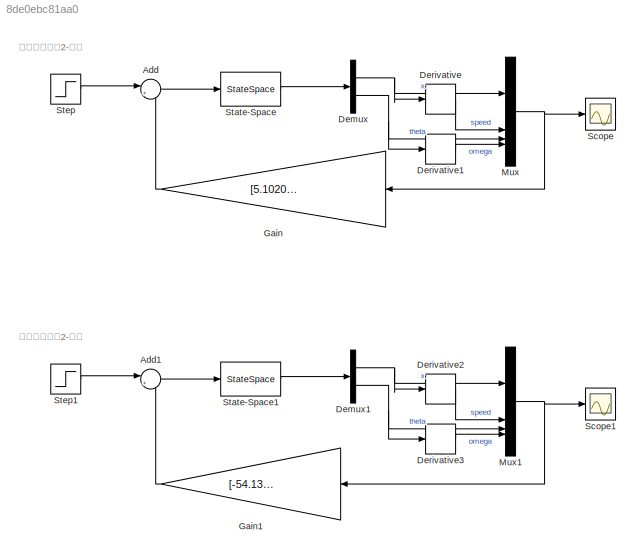
MODEL slx_8de0ebc81aa0
KIND model
CONFIG AbsTol = auto
CONFIG EnableMultiTasking = off
CONFIG FixedStep = auto
CONFIG MaxStep = auto
CONFIG MinStep = auto
CONFIG RelTol = 1e-3
CONFIG SampleTimeConstraint = Unconstrained
CONFIG SolverName = VariableStepAuto
CONFIG StartTime = 0.0
CONFIG StopTime = 6
BLOCK [Sum] Add
  Inputs = |++
BLOCK [Sum] Add1
  Inputs = |++
BLOCK [Demux] Demux
  Outputs = 2
BLOCK [Demux] Demux1
  Outputs = 2
BLOCK [Derivative] Derivative
BLOCK [Derivative] Derivative1
BLOCK [Derivative] Derivative2
BLOCK [Derivative] Derivative3
BLOCK [Gain] Gain
  Gain = [5.1020 5.4762 -31.8340 -5.4921]
  Multiplication = Matrix(K*u)
  NameLocation = top
BLOCK [Gain] Gain1
  Gain = [-54.1333 -10.0227 10.0680]
  Multiplication = Matrix(K*u)
  NameLocation = top
BLOCK [Mux] Mux
  DisplayOption = bar
BLOCK [Mux] Mux1
  DisplayOption = bar
BLOCK [Scope] Scope
  ActiveDisplayYMaximum = 0.222
  ActiveDisplayYMinimum = -0.25292
  Floating = off
  GraphicalSettings = {"GraphicalSettings":{"LegacySettings":true,"Style":{"Style":{"AxesColor":"[1 1 1]","BackgroundColor":"[1 1 1]","ChannelNames":["Pos","Velo","Angle","Angle Velo"],"ColorOrder":"[0.0666666666666667 0.443137254901961 0.745098039215686;0.866666666666667 0.329411764705882 0;0.929411764705882 0.694117647058824 0.125490196078431;0.52156862745098 0.0862745098039216 0.819607843137255;0.231372549019608 0.6...<+814ch>
  MultipleDisplayCache = [{"MaxYLimMag":0.25292,"MaxYLimReal":0.222,"MinYLimMag":0,"MinYLimReal":-0.25292,"PlotAsMagnitudePhase":false,"ShowGrid":true,"ShowLegend":true,"Title":"%<SignalLabel>","YLabel":""}]
  NumInputPorts = 1
  ShowLegend = on
  WasSavedAsWebScope = on
BLOCK [Scope] Scope1
  ActiveDisplayYMaximum = 0.222
  ActiveDisplayYMinimum = -0.25292
  DataLoggingVariableName = ScopeData1
  Floating = off
  GraphicalSettings = {"GraphicalSettings":{"LegacySettings":true,"Style":{"Style":{"AxesColor":"[1 1 1]","BackgroundColor":"[1 1 1]","ChannelNames":["Pos","Velo","Angle","Angle Velo"],"ColorOrder":"[0.0666666666666667 0.443137254901961 0.745098039215686;0.866666666666667 0.329411764705882 0;0.929411764705882 0.694117647058824 0.125490196078431;0.52156862745098 0.0862745098039216 0.819607843137255;0.231372549019608 0.6...<+814ch>
  MultipleDisplayCache = [{"MaxYLimMag":0.25292,"MaxYLimReal":0.222,"MinYLimMag":0,"MinYLimReal":-0.25292,"PlotAsMagnitudePhase":false,"ShowGrid":true,"ShowLegend":true,"Title":"%<SignalLabel>","YLabel":""}]
  NumInputPorts = 1
  ShowLegend = on
  WasSavedAsWebScope = on
BLOCK [StateSpace] State-Space
  A = [0 1 0 0;0 0 0 0;0 0 0 1;0 0 29.4 0]
  B = [0;1;0;3]
  C = [1 0 0 0;0 0 1 0]
  D = [0;0]
  InitialCondition = 0
BLOCK [StateSpace] State-Space1
  A = [0 1 0;29.4 0 0; 0 0 0]
  B = [0; 3; 1]
  C = [1 0 0]
  D = [0]
  InitialCondition = 0
BLOCK [Step] Step
  SampleTime = 0
  Time = 0.5
BLOCK [Step] Step1
  SampleTime = 0
  Time = 0.5
ANNOTATION (root): 自控理论实验2-仿真
LINE Add1:1 -> State-Space1:1
LINE Add:1 -> State-Space:1
NET Demux1:1 -> Derivative2:1, Mux1:1
NET Demux1:2 -> Derivative3:1, Mux1:3
NET Demux:1 -> Derivative:1, Mux:1
NET Demux:2 -> Derivative1:1, Mux:3
LINE Derivative1:1 -> Mux:4
LINE Derivative2:1 -> Mux1:2
LINE Derivative3:1 -> Mux1:4
LINE Derivative:1 -> Mux:2
LINE Gain1:1 -> Add1:2
LINE Gain:1 -> Add:2
NET Mux1:1 -> Gain1:1, Scope1:1
NET Mux:1 -> Gain:1, Scope:1
LINE State-Space1:1 -> Demux1:1
LINE State-Space:1 -> Demux:1
LINE Step1:1 -> Add1:1
LINE Step:1 -> Add:1
note: NET lines group one-source signal fan-out (src -> all destinations, sorted); 1:1 wires keep LINE
